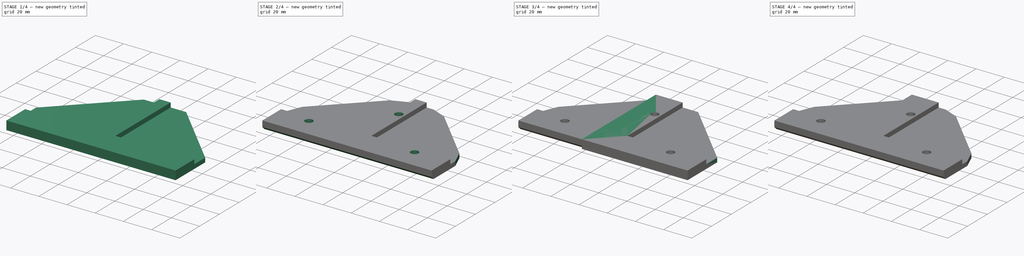
[diagram: build sequence overview — one tinted view per stage of 4, left to right]
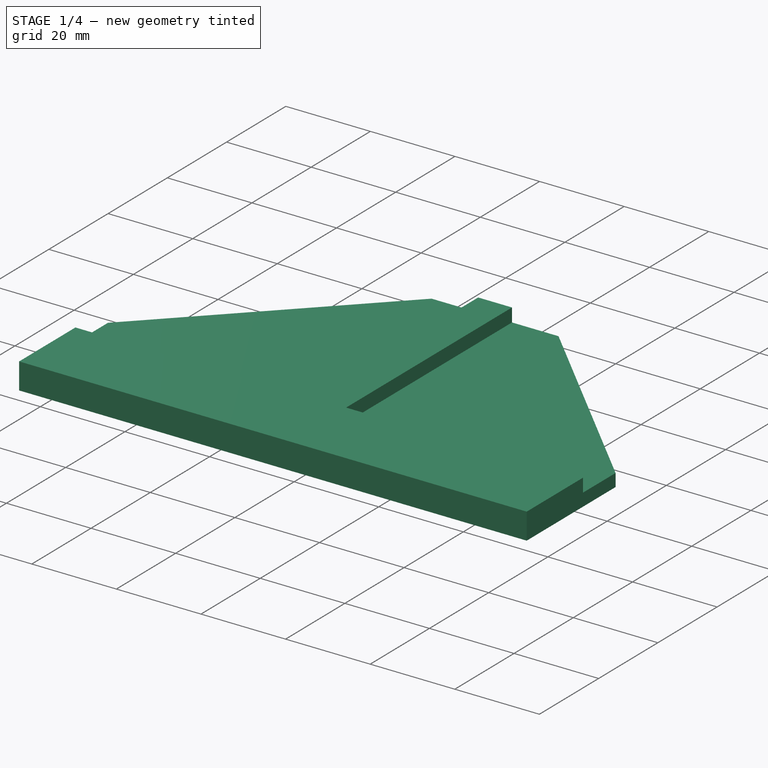
[diagram: stage 1 of 4 — iso view after this stage's code; geometry added in this stage tinted green]
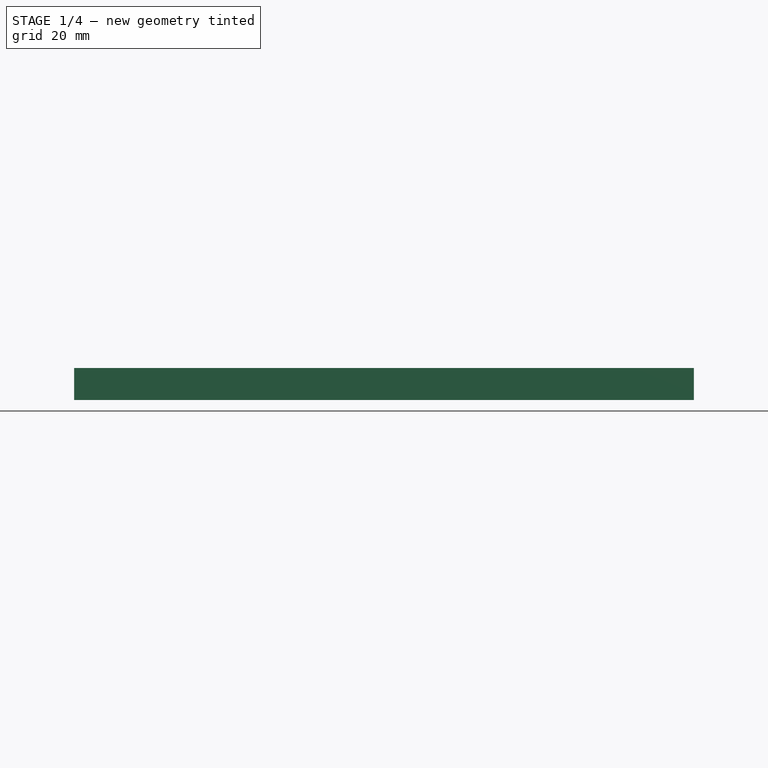
[diagram: stage 1 of 4 — front view after this stage's code; geometry added in this stage tinted green]
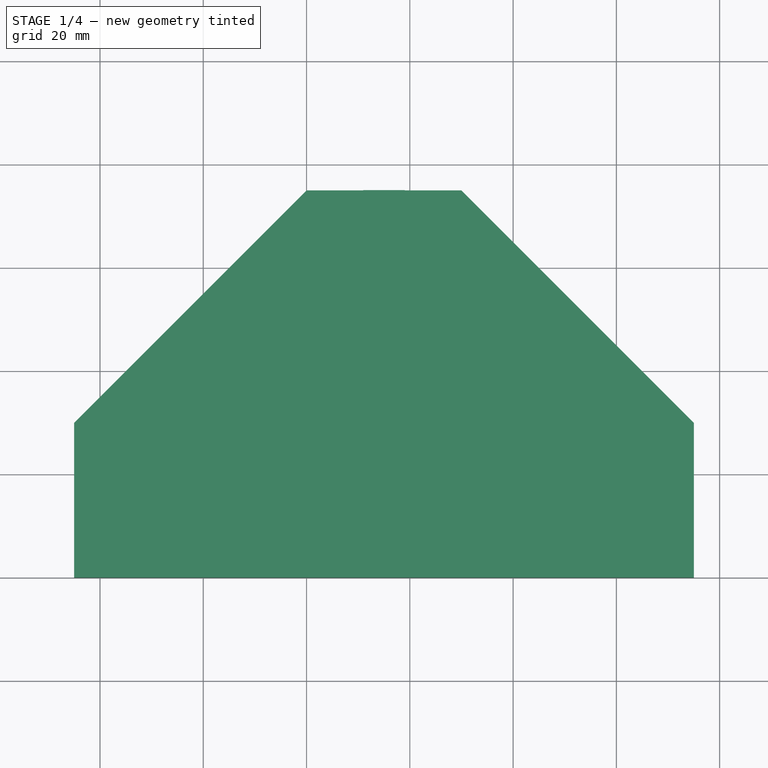
[diagram: stage 1 of 4 — top view after this stage's code; geometry added in this stage tinted green]
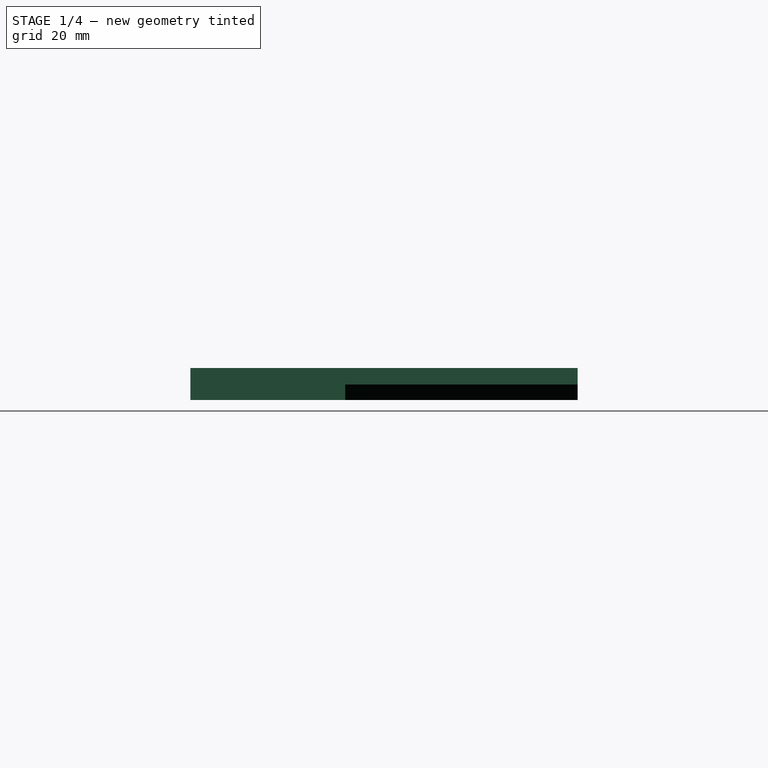
[diagram: stage 1 of 4 — right view after this stage's code; geometry added in this stage tinted green]
FCSTD DOCUMENT  (FreeCAD 1.0R39285 (Git))
Label: plexi-mount
License: All rights reserved
objects: Sketcher::SketchObject×6, PartDesign::Pad×4, PartDesign::Chamfer×4, PartDesign::Pocket×2, PartDesign::Body×2, App::Part×2
note: 44 computed .brp shape members not serialized (recipe doc carries the construction recipe); baked Part::Feature solids carry a one-line shape summary decoded from their .brp

FEATURE [PartDesign::Body] Body  label="corner-plexi-mount-body"
  AllowCompound = false
  Group = -> [Sketch,Pad,Sketch001,Pad001,Sketch002,Pocket,Chamfer,Chamfer001]
  Origin = -> Origin001
  Tip = -> Chamfer001
FEATURE [App::Part] Part  label="corner-plexi-mount-part"
  Group = -> [Body]
  Origin = -> Origin
FEATURE [Sketcher::SketchObject] Sketch003
  ArcFitTolerance = 1e-06
  AttachmentSupport = -> [XY_Plane003]
  FullyConstrained = true
  MakeInternals = false
  MapMode = 5
  sketch-geometry (15):
    g0: LineSegment [constr] StartX=0 StartY=0 StartZ=0 EndX=75 EndY=0 EndZ=0
    g1: LineSegment [constr] StartX=75 StartY=0 StartZ=0 EndX=75 EndY=30 EndZ=0
    g2: LineSegment [constr] StartX=75 StartY=30 StartZ=0 EndX=0 EndY=30 EndZ=0
    g3: LineSegment [constr] StartX=0 StartY=30 StartZ=0 EndX=0 EndY=0 EndZ=0
    g4: LineSegment [constr] StartX=0 StartY=0 StartZ=0 EndX=30 EndY=0 EndZ=0
    g5: LineSegment [constr] StartX=30 StartY=0 StartZ=0 EndX=30 EndY=75 EndZ=0
    g6: LineSegment [constr] StartX=30 StartY=75 StartZ=0 EndX=0 EndY=75 EndZ=0
    g7: LineSegment [constr] StartX=0 StartY=75 StartZ=0 EndX=0 EndY=0 EndZ=0
    g8: LineSegment StartX=75 StartY=0 StartZ=0 EndX=75 EndY=30 EndZ=0
    g9: LineSegment StartX=0 StartY=0 StartZ=0 EndX=75 EndY=0 EndZ=0
    g10: LineSegment StartX=30 StartY=75 StartZ=0 EndX=75 EndY=30 EndZ=0
    g11: LineSegment StartX=0 StartY=0 StartZ=0 EndX=-45 EndY=0 EndZ=0
    g12: LineSegment StartX=-45 StartY=0 StartZ=0 EndX=-45 EndY=30 EndZ=0
    g13: LineSegment StartX=30 StartY=75 StartZ=0 EndX=0 EndY=75 EndZ=0
    g14: LineSegment StartX=0 StartY=75 StartZ=0 EndX=-45 EndY=30 EndZ=0
  constraints (38):
    c: Coincident(g0,g1)
    c: Coincident(g1,g2)
    c: Coincident(g2,g3)
    c: Coincident(g3,g0)
    c: Horizontal(g0)
    c: Horizontal(g2)
    c: Vertical(g1)
    c: Vertical(g3)
    c: Distance(g1,g3) = 75
    c: Distance(g0,g2) = 30
    c: Coincident(g0,g-1)
    c: Coincident(g4,g5)
    c: Coincident(g5,g6)
    c: Coincident(g6,g7)
    c: Coincident(g7,g4)
    c: Horizontal(g4)
    c: Horizontal(g6)
    c: Vertical(g5)
    c: Vertical(g7)
    c: Distance(g5,g7) = 30
    c: Distance(g4,g6) = 75
    c: Coincident(g4,g0)
    c: Coincident(g8,g0)
    c: Coincident(g8,g1)
    c: Coincident(g9,g0)
    c: Coincident(g9,g0)
    c: Coincident(g10,g5)
    c: Coincident(g10,g1)
    c: Distance(g11) = 45
    c: Coincident(g11,g0)
    c: PointOnObject(g11,g-1)
    c: Distance(g12) = 30
    c: Coincident(g12,g11)
    c: Vertical(g12)
    c: Coincident(g13,g5)
    c: Coincident(g13,g6)
    c: Coincident(g14,g6)
    c: Coincident(g14,g12)
FEATURE [PartDesign::Pad] Pad002
  Direction = (0,0,1)
  Length = 3
  Length2 = 10
  Profile = -> Sketch003
  ReferenceAxis = -> Sketch003 [N_Axis]
  Refine = true
  Suppressed = false
  Type = 0
FEATURE [Sketcher::SketchObject] Sketch004
  ArcFitTolerance = 1e-06
  AttachmentSupport = -> [Pad002]
  FullyConstrained = true
  MakeInternals = false
  MapMode = 5
  Placement = pos=(0,0,3) rot=(0,0,1;0rad)
  sketch-geometry (17):
    g0: LineSegment [constr] StartX=0 StartY=0 StartZ=0 EndX=19 EndY=0 EndZ=0
    g1: LineSegment [constr] StartX=19 StartY=0 StartZ=0 EndX=19 EndY=75 EndZ=0
    g2: LineSegment [constr] StartX=19 StartY=75 StartZ=0 EndX=0 EndY=75 EndZ=0
    g3: LineSegment [constr] StartX=0 StartY=75 StartZ=0 EndX=0 EndY=0 EndZ=0
    g4: LineSegment [constr] StartX=0 StartY=0 StartZ=0 EndX=75 EndY=0 EndZ=0
    g5: LineSegment [constr] StartX=75 StartY=0 StartZ=0 EndX=75 EndY=19 EndZ=0
    g6: LineSegment [constr] StartX=75 StartY=19 StartZ=0 EndX=0 EndY=19 EndZ=0
    g7: LineSegment [constr] StartX=0 StartY=19 StartZ=0 EndX=0 EndY=0 EndZ=0
    g8: LineSegment StartX=19 StartY=75 StartZ=0 EndX=19 EndY=19 EndZ=0
    g9: LineSegment StartX=19 StartY=19 StartZ=0 EndX=75 EndY=19 EndZ=0
    g10: LineSegment StartX=75 StartY=19 StartZ=0 EndX=75 EndY=0 EndZ=0
    g11: LineSegment StartX=75 StartY=0 StartZ=0 EndX=0 EndY=0 EndZ=0
    g12: LineSegment StartX=0 StartY=0 StartZ=0 EndX=-45 EndY=0 EndZ=0
    g13: LineSegment StartX=-45 StartY=0 StartZ=0 EndX=-45 EndY=19 EndZ=0
    g14: LineSegment StartX=-45 StartY=19 StartZ=0 EndX=11 EndY=19 EndZ=0
    g15: LineSegment StartX=11 StartY=19 StartZ=0 EndX=11 EndY=75 EndZ=0
    g16: LineSegment StartX=11 StartY=75 StartZ=0 EndX=19 EndY=75 EndZ=0
  constraints (45):
    c: Coincident(g0,g1)
    c: Coincident(g1,g2)
    c: Coincident(g2,g3)
    c: Coincident(g3,g0)
    c: Horizontal(g0)
    c: Horizontal(g2)
    c: Vertical(g1)
    c: Vertical(g3)
    c: Distance(g1,g3) = 19
    c: Distance(g0,g2) = 75
    c: Coincident(g0,g-1)
    c: Coincident(g4,g5)
    c: Coincident(g5,g6)
    c: Coincident(g6,g7)
    c: Coincident(g7,g4)
    c: Horizontal(g4)
    c: Horizontal(g6)
    c: Vertical(g5)
    c: Vertical(g7)
    c: Distance(g5,g7) = 75
    c: Distance(g4,g6) = 19
    c: Coincident(g4,g0)
    c: Coincident(g8,g1)
    c: PointOnObject(g8,g6)
    c: Vertical(g8)
    c: Coincident(g9,g8)
    c: Coincident(g9,g5)
    c: Coincident(g10,g5)
    c: Coincident(g10,g4)
    c: Coincident(g11,g4)
    c: Coincident(g11,g0)
    c: Distance(g12) = 45
    c: Coincident(g12,g0)
    c: PointOnObject(g12,g-1)
    c: Distance(g13) = 19
    c: Coincident(g13,g12)
    c: Vertical(g13)
    c: Distance(g14) = 56
    c: Coincident(g14,g13)
    c: PointOnObject(g14,g6)
    c: Coincident(g15,g14)
    c: PointOnObject(g15,g2)
    c: Vertical(g15)
    c: Coincident(g16,g15)
    c: Coincident(g16,g1)
FEATURE [PartDesign::Pad] Pad003
  BaseFeature = -> Pad002
  Direction = (0,0,1)
  Length = 3.2
  Length2 = 10
  Profile = -> Sketch004
  ReferenceAxis = -> Sketch004 [N_Axis]
  Refine = true
  Suppressed = false
  Type = 0
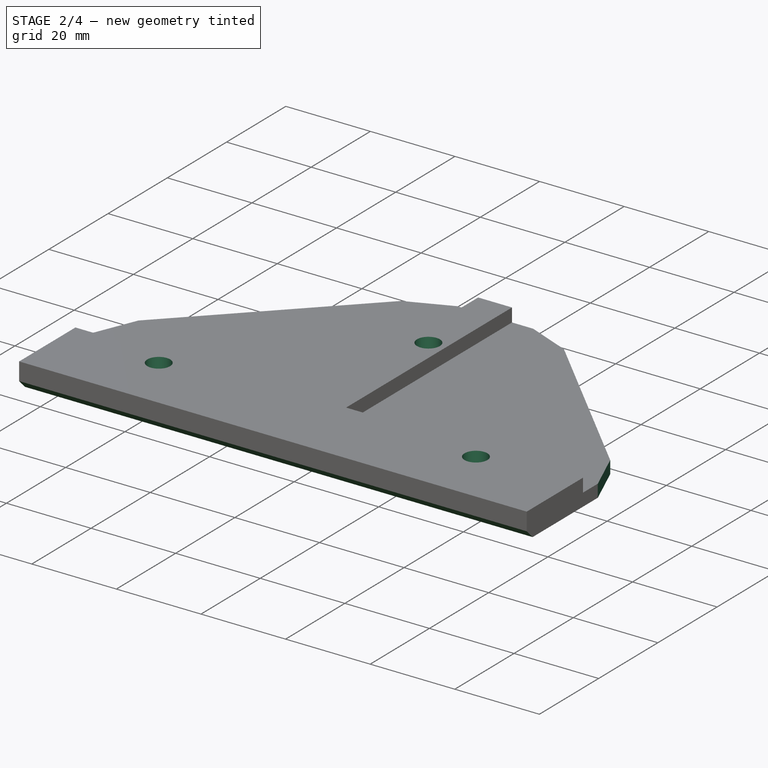
[diagram: stage 2 of 4 — iso view after this stage's code; geometry added in this stage tinted green]
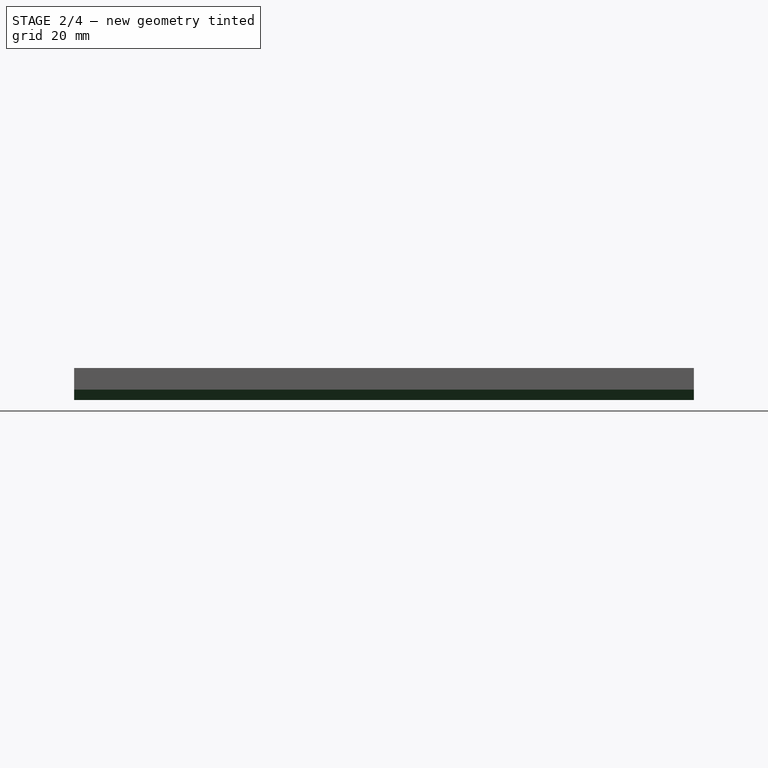
[diagram: stage 2 of 4 — front view after this stage's code; geometry added in this stage tinted green]
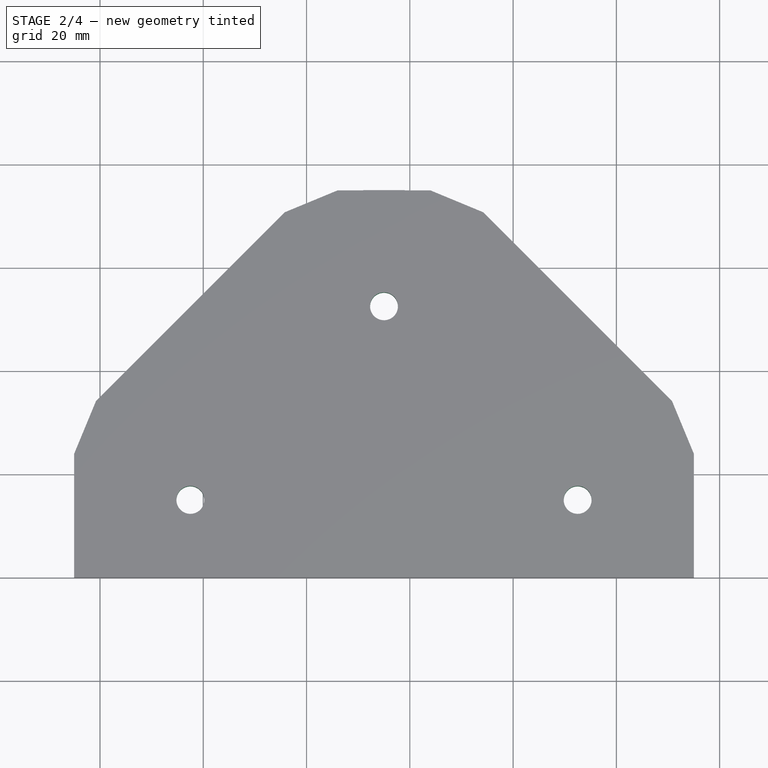
[diagram: stage 2 of 4 — top view after this stage's code; geometry added in this stage tinted green]
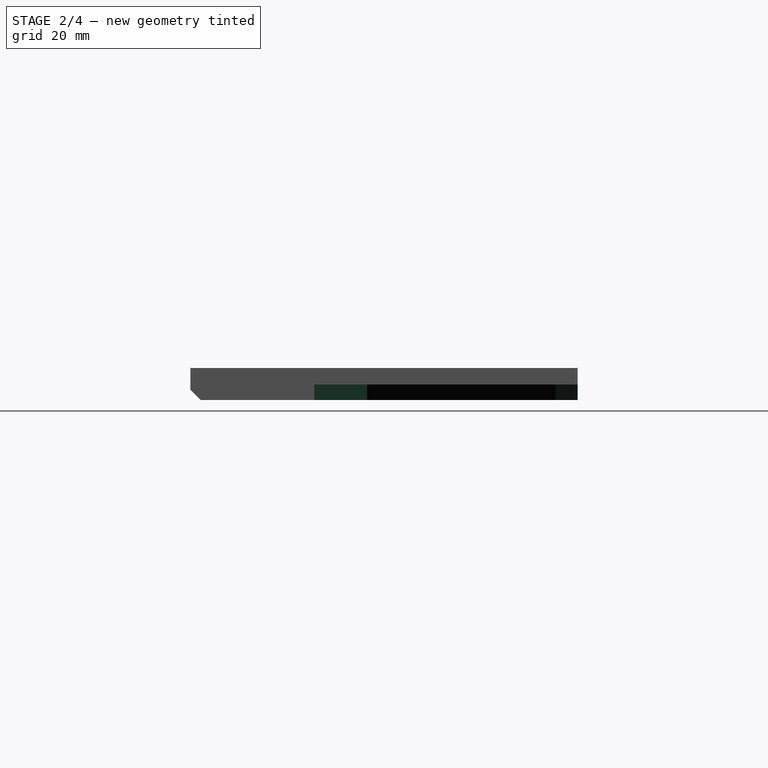
[diagram: stage 2 of 4 — right view after this stage's code; geometry added in this stage tinted green]
FEATURE [Sketcher::SketchObject] Sketch005
  ArcFitTolerance = 1e-06
  AttachmentSupport = -> [Pad003]
  FullyConstrained = true
  MakeInternals = false
  MapMode = 5
  Placement = pos=(0,0,0) rot=(1,0,0;3.14159rad)
  sketch-geometry (16):
    g0: LineSegment [constr] StartX=0 StartY=0 StartZ=0 EndX=0 EndY=-30 EndZ=0
    g1: LineSegment [constr] StartX=0 StartY=-30 StartZ=0 EndX=30 EndY=-30 EndZ=0
    g2: LineSegment [constr] StartX=30 StartY=-30 StartZ=0 EndX=30 EndY=0 EndZ=0
    g3: LineSegment [constr] StartX=30 StartY=0 StartZ=0 EndX=0 EndY=0 EndZ=0
    g4: LineSegment [constr] StartX=30 StartY=0 StartZ=0 EndX=30 EndY=-15 EndZ=0
    g5: LineSegment [constr] StartX=30 StartY=-15 StartZ=0 EndX=52.5 EndY=-15 EndZ=0
    g6: LineSegment [constr] StartX=52.5 StartY=-15 StartZ=0 EndX=52.5 EndY=0 EndZ=0
    g7: LineSegment [constr] StartX=52.5 StartY=0 StartZ=0 EndX=30 EndY=0 EndZ=0
    g8: Circle CenterX=52.5 CenterY=-15 CenterZ=0 NormalX=0 NormalY=0 NormalZ=1 AngleXU=0 Radius=2.7
    g9: LineSegment [constr] StartX=30 StartY=-30 StartZ=0 EndX=15 EndY=-30 EndZ=0
    g10: LineSegment [constr] StartX=15 StartY=-30 StartZ=0 EndX=15 EndY=-52.5 EndZ=0
    g11: LineSegment [constr] StartX=15 StartY=-52.5 StartZ=0 EndX=30 EndY=-52.5 EndZ=0
    g12: LineSegment [constr] StartX=30 StartY=-52.5 StartZ=0 EndX=30 EndY=-30 EndZ=0
    g13: Circle CenterX=15 CenterY=-52.5 CenterZ=0 NormalX=0 NormalY=0 NormalZ=1 AngleXU=0 Radius=2.7
    g14: LineSegment [constr] StartX=0 StartY=-15 StartZ=0 EndX=-22.5 EndY=-15 EndZ=0
    g15: Circle CenterX=-22.5 CenterY=-15 CenterZ=0 NormalX=0 NormalY=0 NormalZ=1 AngleXU=0 Radius=2.7
  constraints (42):
    c: Coincident(g0,g1)
    c: Coincident(g1,g2)
    c: Coincident(g2,g3)
    c: Coincident(g3,g0)
    c: Vertical(g0)
    c: Vertical(g2)
    c: Horizontal(g1)
    c: Horizontal(g3)
    c: Distance(g0,g2) = 30
    c: Distance(g1,g3) = 30
    c: Coincident(g0,g-1)
    c: Coincident(g4,g5)
    c: Coincident(g5,g6)
    c: Coincident(g6,g7)
    c: Coincident(g7,g4)
    c: Vertical(g4)
    c: Vertical(g6)
    c: Horizontal(g5)
    c: Horizontal(g7)
    c: Distance(g4,g6) = 22.5
    c: Distance(g5,g7) = 15
    c: Coincident(g4,g2)
    c: Diameter(g8) = 5.4
    c: Coincident(g8,g5)
    c: Coincident(g9,g10)
    c: Coincident(g10,g11)
    c: Coincident(g11,g12)
    c: Coincident(g12,g9)
    c: Horizontal(g9)
    c: Horizontal(g11)
    c: Vertical(g10)
    c: Vertical(g12)
    c: Distance(g10,g12) = 15
    c: Distance(g9,g11) = 22.5
    c: Coincident(g9,g1)
    c: Diameter(g13) = 5.4
    c: Coincident(g13,g10)
    c: Distance(g14) = 22.5
    c: Symmetric(g0,g0,g14)
    c: Horizontal(g14)
    c: Diameter(g15) = 5.4
    c: Coincident(g15,g14)
FEATURE [PartDesign::Pocket] Pocket001
  BaseFeature = -> Pad003
  Direction = (0,0,1)
  Length = 8
  Length2 = 5
  Profile = -> Sketch005
  ReferenceAxis = -> Sketch005 [N_Axis]
  Refine = true
  Suppressed = false
  Type = 0
FEATURE [PartDesign::Chamfer] Chamfer002
  Angle = 45
  Base = -> Pocket001 [Edge17]
  BaseFeature = -> Pocket001
  ChamferType = 0
  FlipDirection = false
  Refine = true
  Size = 2
  Size2 = 1
  SupportTransform = false
  Suppressed = false
  UseAllEdges = false
FEATURE [PartDesign::Chamfer] Chamfer003
  Angle = 45
  Base = -> Chamfer002 [Edge38,Edge36,Edge18,Edge3]
  BaseFeature = -> Chamfer002
  ChamferType = 0
  FlipDirection = false
  Refine = true
  Size = 6
  Size2 = 1
  SupportTransform = false
  Suppressed = false
  UseAllEdges = false
FEATURE [PartDesign::Body] Body001  label="plexi-mount-part001"
  AllowCompound = false
  Group = -> [Sketch003,Pad002,Sketch004,Pad003,Sketch005,Pocket001,Chamfer002,Chamfer003]
  Origin = -> Origin003
  Tip = -> Chamfer003
FEATURE [App::Part] Part001  label="middle-plexi-mount-part"
  Group = -> [Body001]
  Origin = -> Origin002
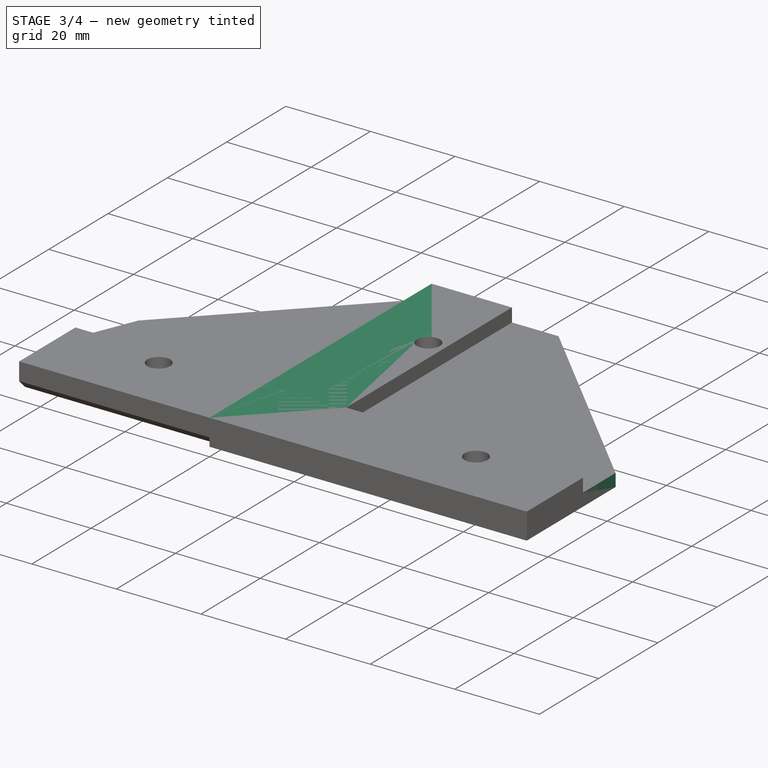
[diagram: stage 3 of 4 — iso view after this stage's code; geometry added in this stage tinted green]
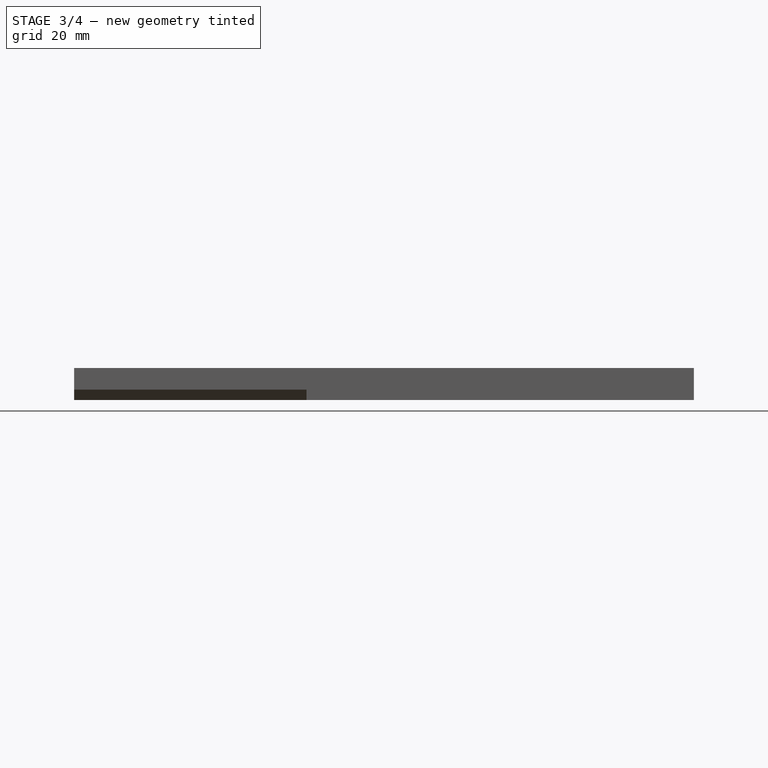
[diagram: stage 3 of 4 — front view after this stage's code; geometry added in this stage tinted green]
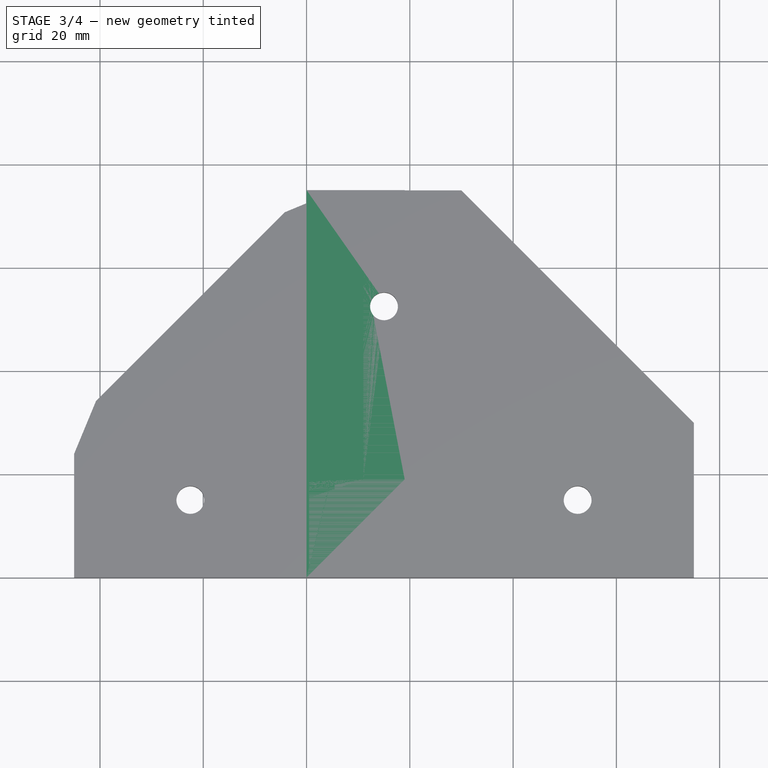
[diagram: stage 3 of 4 — top view after this stage's code; geometry added in this stage tinted green]
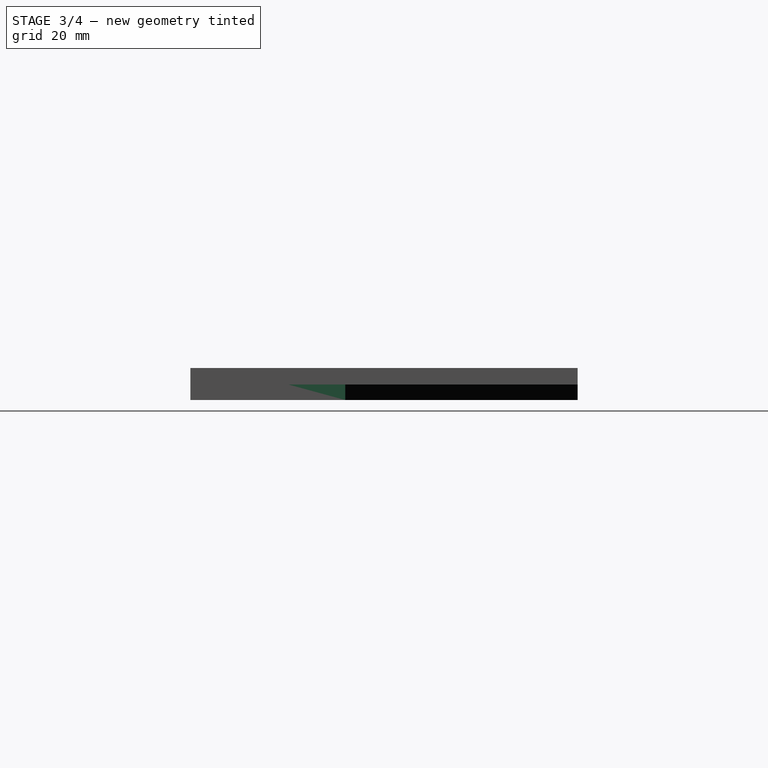
[diagram: stage 3 of 4 — right view after this stage's code; geometry added in this stage tinted green]
FEATURE [Sketcher::SketchObject] Sketch
  ArcFitTolerance = 1e-06
  AttachmentSupport = -> [XY_Plane001]
  FullyConstrained = true
  MakeInternals = false
  MapMode = 5
  sketch-geometry (13):
    g0: LineSegment [constr] StartX=1e-16 StartY=0 StartZ=0 EndX=75 EndY=0 EndZ=0
    g1: LineSegment [constr] StartX=75 StartY=0 StartZ=0 EndX=75 EndY=30 EndZ=0
    g2: LineSegment [constr] StartX=75 StartY=30 StartZ=0 EndX=0 EndY=30 EndZ=0
    g3: LineSegment [constr] StartX=1e-16 StartY=30 StartZ=0 EndX=1e-16 EndY=0 EndZ=0
    g4: LineSegment [constr] StartX=1e-16 StartY=0 StartZ=0 EndX=30 EndY=0 EndZ=0
    g5: LineSegment [constr] StartX=30 StartY=0 StartZ=0 EndX=30 EndY=75 EndZ=0
    g6: LineSegment [constr] StartX=30 StartY=75 StartZ=0 EndX=0 EndY=75 EndZ=0
    g7: LineSegment [constr] StartX=1e-16 StartY=75 StartZ=0 EndX=1e-16 EndY=0 EndZ=0
    g8: LineSegment StartX=75 StartY=0 StartZ=0 EndX=75 EndY=30 EndZ=0
    g9: LineSegment StartX=30 StartY=75 StartZ=0 EndX=0 EndY=75 EndZ=0
    g10: LineSegment StartX=1e-16 StartY=75 StartZ=0 EndX=1e-16 EndY=0 EndZ=0
    g11: LineSegment StartX=1e-16 StartY=0 StartZ=0 EndX=75 EndY=0 EndZ=0
    g12: LineSegment StartX=30 StartY=75 StartZ=0 EndX=75 EndY=30 EndZ=0
  constraints (32):
    c: Coincident(g0,g1)
    c: Coincident(g1,g2)
    c: Coincident(g2,g3)
    c: Coincident(g3,g0)
    c: Horizontal(g0)
    c: Horizontal(g2)
    c: Vertical(g1)
    c: Vertical(g3)
    c: Distance(g1,g3) = 75
    c: Distance(g0,g2) = 30
    c: Coincident(g0,g-1)
    c: Coincident(g4,g5)
    c: Coincident(g5,g6)
    c: Coincident(g6,g7)
    c: Coincident(g7,g4)
    c: Horizontal(g4)
    c: Horizontal(g6)
    c: Vertical(g5)
    c: Vertical(g7)
    c: Distance(g5,g7) = 30
    c: Distance(g4,g6) = 75
    c: Coincident(g4,g0)
    c: Coincident(g8,g0)
    c: Coincident(g8,g1)
    c: Coincident(g9,g5)
    c: Coincident(g9,g6)
    c: Coincident(g10,g6)
    c: Coincident(g10,g0)
    c: Coincident(g11,g0)
    c: Coincident(g11,g0)
    c: Coincident(g12,g5)
    c: Coincident(g12,g1)
FEATURE [PartDesign::Pad] Pad
  Direction = (0,0,1)
  Length = 3
  Length2 = 10
  Profile = -> Sketch
  ReferenceAxis = -> Sketch [N_Axis]
  Refine = true
  Suppressed = false
  Type = 0
FEATURE [Sketcher::SketchObject] Sketch001
  ArcFitTolerance = 1e-06
  AttachmentSupport = -> [Pad]
  FullyConstrained = true
  MakeInternals = false
  MapMode = 5
  Placement = pos=(0,0,3) rot=(0,0,1;0rad)
  sketch-geometry (14):
    g0: LineSegment [constr] StartX=0 StartY=0 StartZ=0 EndX=19 EndY=0 EndZ=0
    g1: LineSegment [constr] StartX=19 StartY=0 StartZ=0 EndX=19 EndY=75 EndZ=0
    g2: LineSegment [constr] StartX=19 StartY=75 StartZ=0 EndX=0 EndY=75 EndZ=0
    g3: LineSegment [constr] StartX=0 StartY=75 StartZ=0 EndX=0 EndY=0 EndZ=0
    g4: LineSegment [constr] StartX=0 StartY=0 StartZ=0 EndX=75 EndY=0 EndZ=0
    g5: LineSegment [constr] StartX=75 StartY=0 StartZ=0 EndX=75 EndY=19 EndZ=0
    g6: LineSegment [constr] StartX=75 StartY=19 StartZ=0 EndX=0 EndY=19 EndZ=0
    g7: LineSegment [constr] StartX=0 StartY=19 StartZ=0 EndX=0 EndY=0 EndZ=0
    g8: LineSegment StartX=0 StartY=75 StartZ=0 EndX=19 EndY=75 EndZ=0
    g9: LineSegment StartX=19 StartY=75 StartZ=0 EndX=19 EndY=19 EndZ=0
    g10: LineSegment StartX=19 StartY=19 StartZ=0 EndX=75 EndY=19 EndZ=0
    g11: LineSegment StartX=75 StartY=19 StartZ=0 EndX=75 EndY=0 EndZ=0
    g12: LineSegment StartX=75 StartY=0 StartZ=0 EndX=0 EndY=0 EndZ=0
    g13: LineSegment StartX=0 StartY=0 StartZ=0 EndX=0 EndY=75 EndZ=0
  constraints (35):
    c: Coincident(g0,g1)
    c: Coincident(g1,g2)
    c: Coincident(g2,g3)
    c: Coincident(g3,g0)
    c: Horizontal(g0)
    c: Horizontal(g2)
    c: Vertical(g1)
    c: Vertical(g3)
    c: Distance(g1,g3) = 19
    c: Distance(g0,g2) = 75
    c: Coincident(g0,g-1)
    c: Coincident(g4,g5)
    c: Coincident(g5,g6)
    c: Coincident(g6,g7)
    c: Coincident(g7,g4)
    c: Horizontal(g4)
    c: Horizontal(g6)
    c: Vertical(g5)
    c: Vertical(g7)
    c: Distance(g5,g7) = 75
    c: Distance(g4,g6) = 19
    c: Coincident(g4,g0)
    c: Coincident(g8,g2)
    c: Coincident(g8,g1)
    c: Coincident(g9,g1)
    c: PointOnObject(g9,g6)
    c: Vertical(g9)
    c: Coincident(g10,g9)
    c: Coincident(g10,g5)
    c: Coincident(g11,g5)
    c: Coincident(g11,g4)
    c: Coincident(g12,g4)
    c: Coincident(g12,g0)
    c: Coincident(g13,g0)
    c: Coincident(g13,g2)
FEATURE [PartDesign::Pad] Pad001
  BaseFeature = -> Pad
  Direction = (0,0,1)
  Length = 3.2
  Length2 = 10
  Profile = -> Sketch001
  ReferenceAxis = -> Sketch001 [N_Axis]
  Refine = true
  Suppressed = false
  Type = 0
FEATURE [Sketcher::SketchObject] Sketch002
  ArcFitTolerance = 1e-06
  AttachmentSupport = -> [Pad001]
  FullyConstrained = true
  MakeInternals = false
  MapMode = 5
  Placement = pos=(0,0,0) rot=(1,0,0;3.14159rad)
  sketch-geometry (14):
    g0: LineSegment [constr] StartX=0 StartY=1e-16 StartZ=0 EndX=0 EndY=-30 EndZ=0
    g1: LineSegment [constr] StartX=0 StartY=-30 StartZ=0 EndX=30 EndY=-30 EndZ=0
    g2: LineSegment [constr] StartX=30 StartY=-30 StartZ=0 EndX=30 EndY=0 EndZ=0
    g3: LineSegment [constr] StartX=30 StartY=1e-16 StartZ=0 EndX=0 EndY=1e-16 EndZ=0
    g4: LineSegment [constr] StartX=30 StartY=1e-16 StartZ=0 EndX=30 EndY=-15 EndZ=0
    g5: LineSegment [constr] StartX=30 StartY=-15 StartZ=0 EndX=52.5 EndY=-15 EndZ=0
    g6: LineSegment [constr] StartX=52.5 StartY=-15 StartZ=0 EndX=52.5 EndY=0 EndZ=0
    g7: LineSegment [constr] StartX=52.5 StartY=1e-16 StartZ=0 EndX=30 EndY=1e-16 EndZ=0
    g8: Circle CenterX=52.5 CenterY=-15 CenterZ=0 NormalX=0 NormalY=0 NormalZ=1 AngleXU=0 Radius=2.7
    g9: LineSegment [constr] StartX=30 StartY=-30 StartZ=0 EndX=15 EndY=-30 EndZ=0
    g10: LineSegment [constr] StartX=15 StartY=-30 StartZ=0 EndX=15 EndY=-52.5 EndZ=0
    g11: LineSegment [constr] StartX=15 StartY=-52.5 StartZ=0 EndX=30 EndY=-52.5 EndZ=0
    g12: LineSegment [constr] StartX=30 StartY=-52.5 StartZ=0 EndX=30 EndY=-30 EndZ=0
    g13: Circle CenterX=15 CenterY=-52.5 CenterZ=0 NormalX=0 NormalY=0 NormalZ=1 AngleXU=0 Radius=2.7
  constraints (37):
    c: Coincident(g0,g1)
    c: Coincident(g1,g2)
    c: Coincident(g2,g3)
    c: Coincident(g3,g0)
    c: Vertical(g0)
    c: Vertical(g2)
    c: Horizontal(g1)
    c: Horizontal(g3)
    c: Distance(g0,g2) = 30
    c: Distance(g1,g3) = 30
    c: Coincident(g0,g-1)
    c: Coincident(g4,g5)
    c: Coincident(g5,g6)
    c: Coincident(g6,g7)
    c: Coincident(g7,g4)
    c: Vertical(g4)
    c: Vertical(g6)
    c: Horizontal(g5)
    c: Horizontal(g7)
    c: Distance(g4,g6) = 22.5
    c: Distance(g5,g7) = 15
    c: Coincident(g4,g2)
    c: Diameter(g8) = 5.4
    c: Coincident(g8,g5)
    c: Coincident(g9,g10)
    c: Coincident(g10,g11)
    c: Coincident(g11,g12)
    c: Coincident(g12,g9)
    c: Horizontal(g9)
    c: Horizontal(g11)
    c: Vertical(g10)
    c: Vertical(g12)
    c: Distance(g10,g12) = 15
    c: Distance(g9,g11) = 22.5
    c: Coincident(g9,g1)
    c: Diameter(g13) = 5.4
    c: Coincident(g13,g10)
FEATURE [PartDesign::Pocket] Pocket
  BaseFeature = -> Pad001
  Direction = (0,0,1)
  Length = 8
  Length2 = 5
  Profile = -> Sketch002
  ReferenceAxis = -> Sketch002 [N_Axis]
  Refine = true
  Suppressed = false
  Type = 0
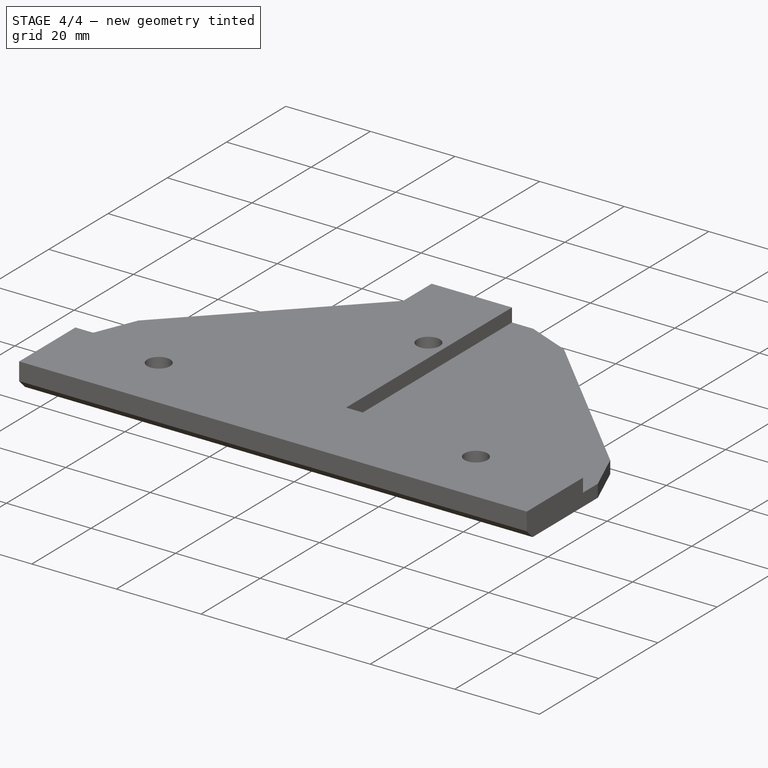
[diagram: stage 4 of 4 — iso view after this stage's code; geometry added in this stage tinted green]
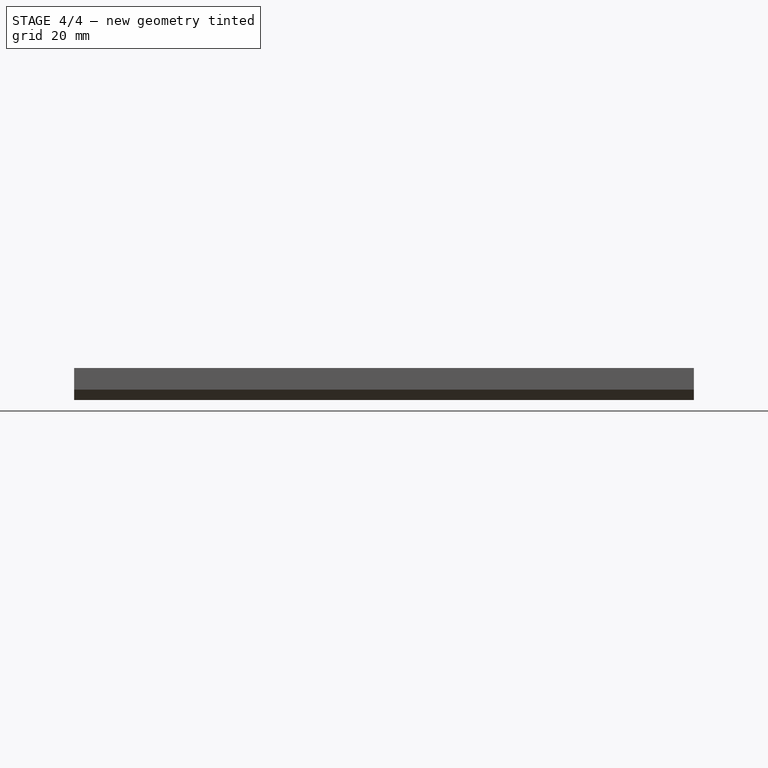
[diagram: stage 4 of 4 — front view after this stage's code; geometry added in this stage tinted green]
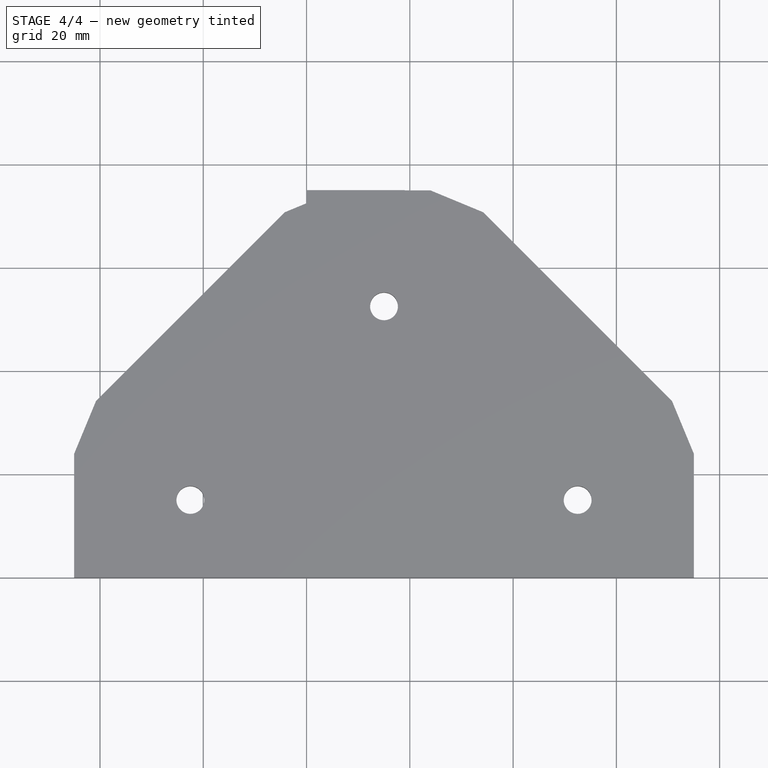
[diagram: stage 4 of 4 — top view after this stage's code; geometry added in this stage tinted green]
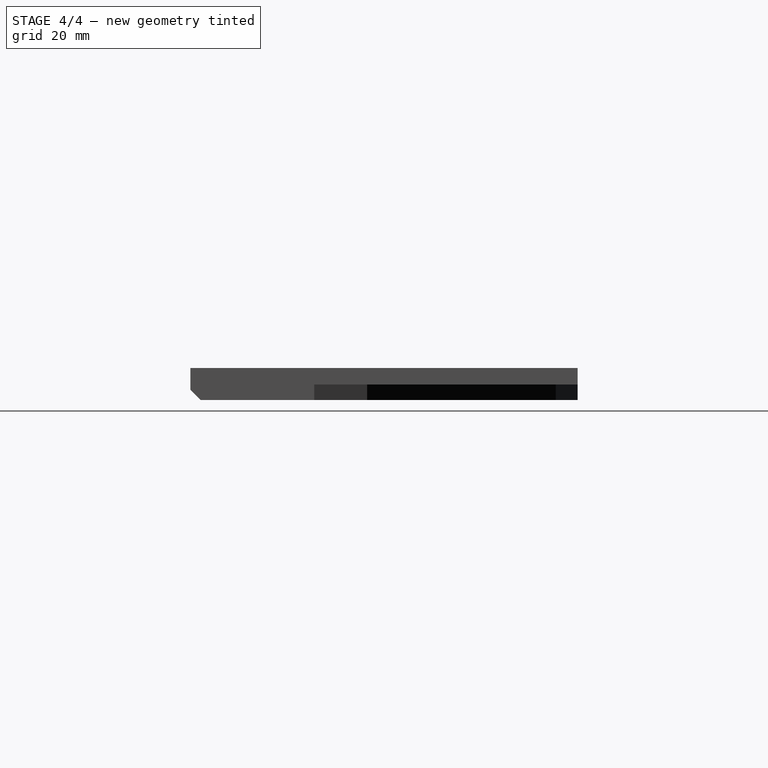
[diagram: stage 4 of 4 — right view after this stage's code; geometry added in this stage tinted green]
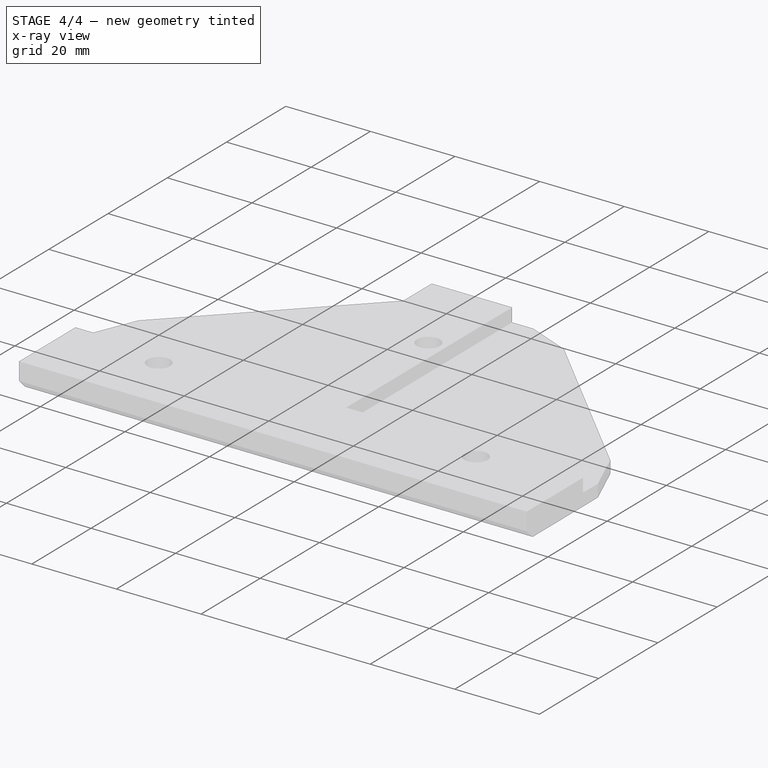
[diagram: stage 4 of 4 — x-ray composite at the iso view; earlier geometry ghosted, this stage's added geometry solid]
FEATURE [PartDesign::Chamfer] Chamfer
  Angle = 45
  Base = -> Pocket [Edge16,Edge15]
  BaseFeature = -> Pocket
  ChamferType = 0
  FlipDirection = false
  Refine = true
  Size = 2
  Size2 = 1
  SupportTransform = false
  Suppressed = false
  UseAllEdges = false
FEATURE [PartDesign::Chamfer] Chamfer001
  Angle = 45
  Base = -> Chamfer [Edge16,Edge3]
  BaseFeature = -> Chamfer
  ChamferType = 0
  FlipDirection = false
  Refine = true
  Size = 6
  Size2 = 1
  SupportTransform = false
  Suppressed = false
  UseAllEdges = false
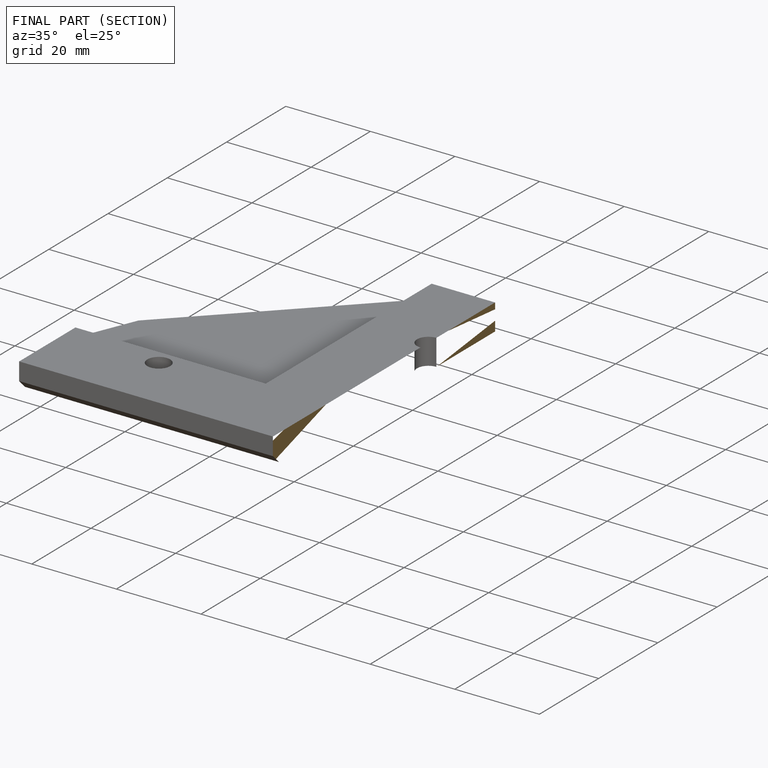
[diagram: finished part — half-section view (interior)]
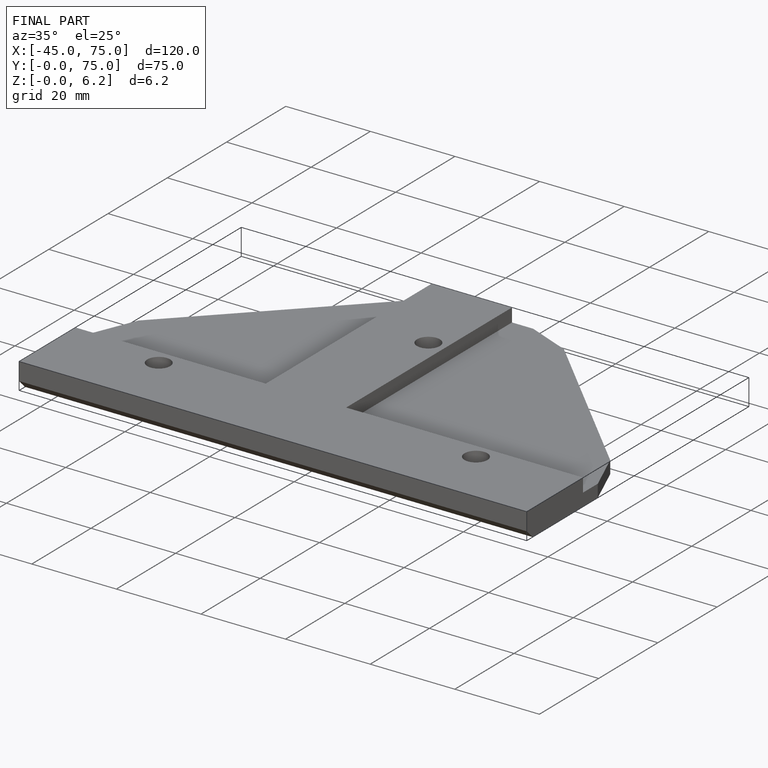
[diagram: finished part — iso view with bounding-box wireframe]
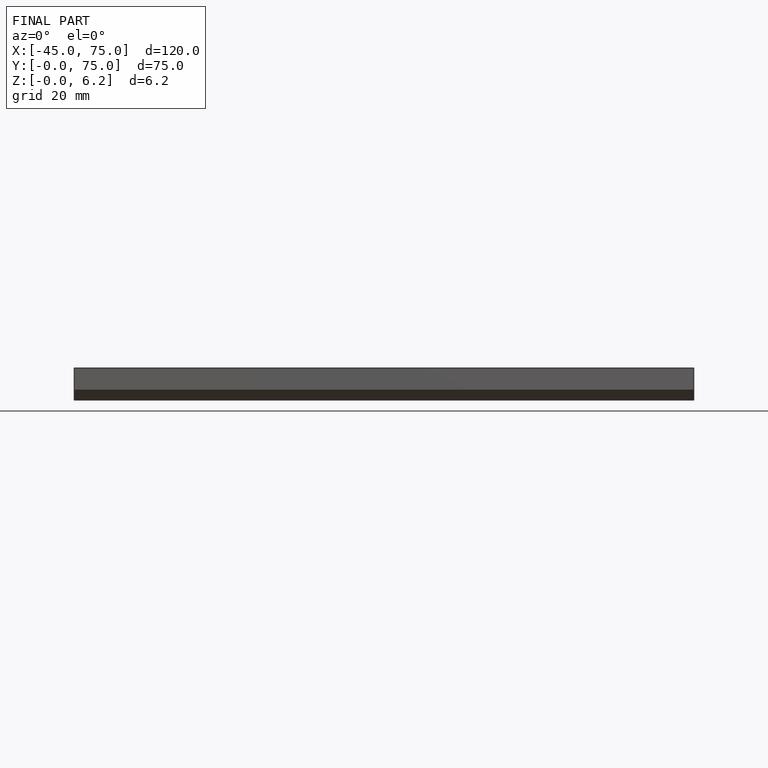
[diagram: finished part — front view with bounding-box wireframe]
